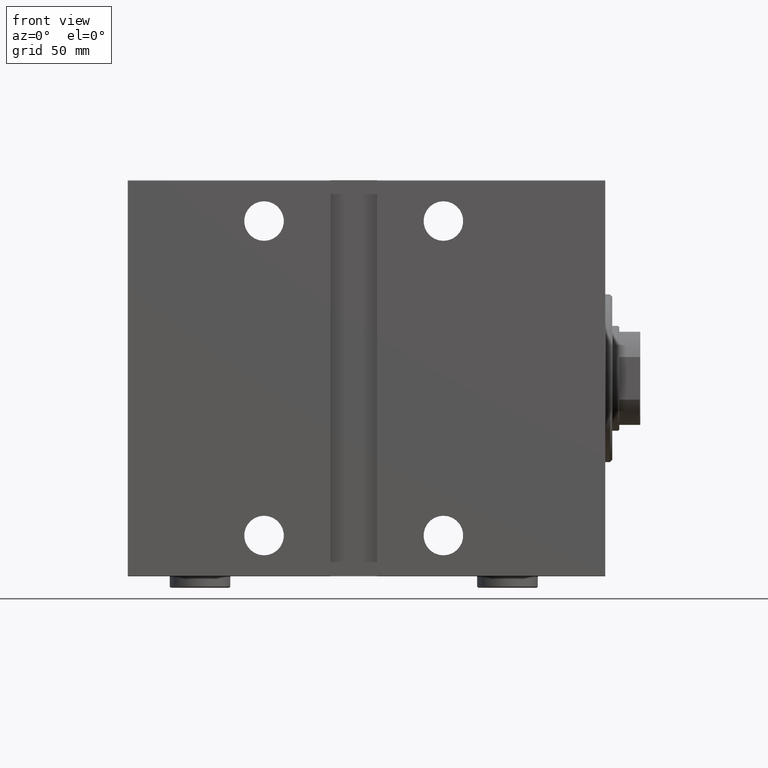
[diagram: clean part render]
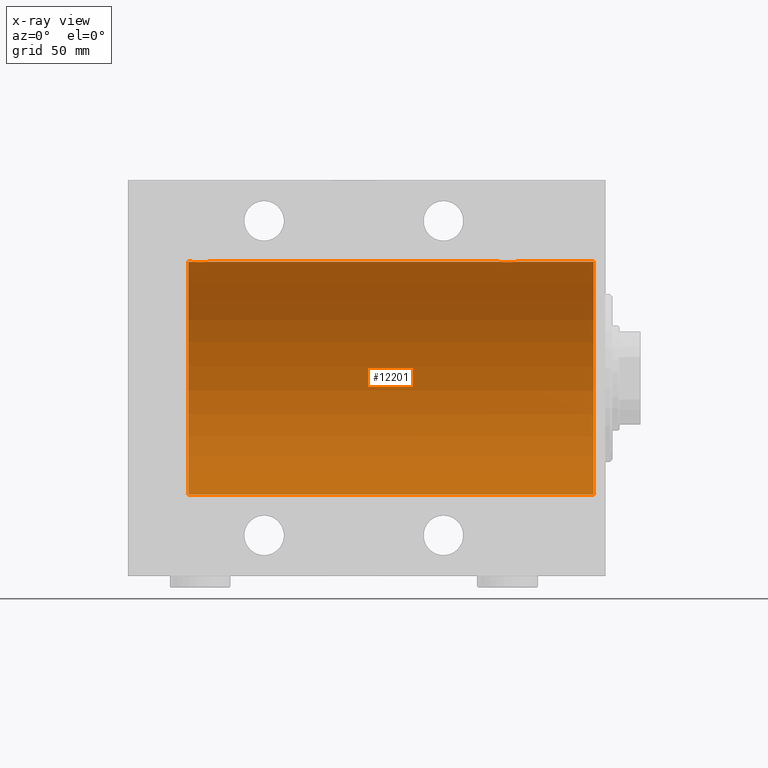
[diagram: x-ray — body ghosted, one internal face saturated and labeled with its STEP entity id]
A machine part, front view, then the same camera in x-ray: the body is ghosted and one INTERNAL B-rep face — a face not visible from any outside direction — is saturated and labeled: STEP entity #12201.
In plain terms, the highlighted cylindrical surface (partial cylindrical patch) has radius 50 mm, axis along (1, 0, -0).
Its self-contained STEP definition (entity closure, byte-faithful):
#222 = CARTESIAN_POINT ( 'NONE',  ( 174.2772492703791727, -4.250219976861650650, 49.81902879621013369 ) ) ;
#409 = DIRECTION ( 'NONE',  ( -1.000000000000000000, 0.000000000000000000, 0.000000000000000000 ) ) ;
#569 = CARTESIAN_POINT ( 'NONE',  ( 177.6860283212194815, -2.133925816755183558, 49.95498245321557818 ) ) ;
#1602 = DIRECTION ( 'NONE',  ( -1.000000000000000000, -0.000000000000000000, -0.000000000000000000 ) ) ;
#1666 = CARTESIAN_POINT ( 'NONE',  ( 179.0000000000000000, 0.000000000000000000, 50.00000000000000000 ) ) ;
#1792 = CARTESIAN_POINT ( 'NONE',  ( 179.0000000000000000, 6.123233995736764507E-15, -50.00000000000000000 ) ) ;
#1822 = CARTESIAN_POINT ( 'NONE',  ( 44.80697831839309941, -3.203153387937316854, 49.89767833571684719 ) ) ;
#2195 = DIRECTION ( 'NONE',  ( -1.000000000000000000, -0.000000000000000000, -0.000000000000000000 ) ) ;
#3081 = EDGE_CURVE ( 'NONE', #28864, #43359, #32419, .T. ) ;
#3131 = CARTESIAN_POINT ( 'NONE',  ( 171.4068727911404721, -3.378657745070624774, 49.88595615988430154 ) ) ;
#3806 = CARTESIAN_POINT ( 'NONE',  ( 175.8821704948444165, -3.820681512513388167, 49.85392475515401145 ) ) ;
#4996 = VERTEX_POINT ( 'NONE', #27254 ) ;
#5400 = CARTESIAN_POINT ( 'NONE',  ( 46.25000000000000000, 5.983909456282587589E-15, 50.00000000000000000 ) ) ;
#5619 = CARTESIAN_POINT ( 'NONE',  ( 45.68602832121950286, -2.133925816755175564, 49.95498245321557818 ) ) ;
#5839 = CARTESIAN_POINT ( 'NONE',  ( 37.77689247200999034, -0.5531336717329059516, 49.99769193709643389 ) ) ;
#6936 = CARTESIAN_POINT ( 'NONE',  ( 173.7160471297329707, -4.249777379711409786, 49.81906655360197789 ) ) ;
#6976 = ORIENTED_EDGE ( 'NONE', *, *, #32136, .T. ) ;
#7171 = CARTESIAN_POINT ( 'NONE',  ( 169.7768924720099903, -0.5531336717329072838, 49.99769193709643389 ) ) ;
#7206 = CYLINDRICAL_SURFACE ( 'NONE', #37569, 50.00000000000000000 ) ;
#7355 = EDGE_CURVE ( 'NONE', #8323, #33901, #10561, .T. ) ;
#7426 = DIRECTION ( 'NONE',  ( -1.000000000000000000, -0.000000000000000000, -0.000000000000000000 ) ) ;
#7808 = CIRCLE ( 'NONE', #24257, 50.00000000000000000 ) ;
#8323 = VERTEX_POINT ( 'NONE', #14612 ) ;
#8553 = CARTESIAN_POINT ( 'NONE',  ( 37.75000000000001421, -0.2773743941468539420, 50.00000000000000711 ) ) ;
#8769 = CARTESIAN_POINT ( 'NONE',  ( 43.09737617879036975, -4.115209769591108291, 49.83039196709102470 ) ) ;
#8989 = CARTESIAN_POINT ( 'NONE',  ( 45.37519984081967550, -2.597781786597460840, 49.93300953359122474 ) ) ;
#9120 = VECTOR ( 'NONE', #1602, 1000.000000000000000 ) ;
#9421 = CARTESIAN_POINT ( 'NONE',  ( 38.79696438048010521, -2.807099414226279066, 49.92152599098506016 ) ) ;
#9743 = VECTOR ( 'NONE', #15332, 1000.000000000000000 ) ;
#10301 = CARTESIAN_POINT ( 'NONE',  ( 171.1884693348458484, -3.199146701881689481, 49.89793607725460589 ) ) ;
#10428 = CARTESIAN_POINT ( 'NONE',  ( 178.2500000000000000, 3.264240518254796977E-15, 50.00000000000000000 ) ) ;
#10500 = CARTESIAN_POINT ( 'NONE',  ( 37.75000000000000711, -2.480809774739037926E-23, 50.00000000000000000 ) ) ;
#10546 = CARTESIAN_POINT ( 'NONE',  ( 169.7499999999999716, -2.480257572105383217E-23, 50.00000000000000000 ) ) ;
#10561 = LINE ( 'NONE', #11016, #33852 ) ;
#10755 = CARTESIAN_POINT ( 'NONE',  ( 176.1263164487507993, -3.690299572754722313, 49.86386974736159061 ) ) ;
#10864 = CARTESIAN_POINT ( 'NONE',  ( 179.0000000000000000, 0.000000000000000000, 0.000000000000000000 ) ) ;
#11016 = CARTESIAN_POINT ( 'NONE',  ( 179.0000000000000000, 0.000000000000000000, 50.00000000000000000 ) ) ;
#11913 = CARTESIAN_POINT ( 'NONE',  ( 45.81839248987871827, -1.886522330773408029, 49.96505190380065642 ) ) ;
#12132 = CARTESIAN_POINT ( 'NONE',  ( 46.22242635520780851, -0.5587117664567096131, 49.99763378604802000 ) ) ;
#12201 = ADVANCED_FACE ( 'NONE', ( #38178 ), #7206, .F. ) ;
#12778 = CARTESIAN_POINT ( 'NONE',  ( 43.36710647554576070, -4.033756670430846292, 49.83713703490974467 ) ) ;
#13378 = CARTESIAN_POINT ( 'NONE',  ( 179.0000000000000000, 0.000000000000000000, 50.00000000000000000 ) ) ;
#13445 = CARTESIAN_POINT ( 'NONE',  ( 175.0973761787903982, -4.115209769591112732, 49.83039196709102470 ) ) ;
#14077 = DIRECTION ( 'NONE',  ( 0.000000000000000000, 0.000000000000000000, 1.000000000000000000 ) ) ;
#14612 = CARTESIAN_POINT ( 'NONE',  ( 179.0000000000000000, 0.000000000000000000, 50.00000000000000000 ) ) ;
#14692 = CARTESIAN_POINT ( 'NONE',  ( 178.2500000000000284, -0.2808785465865648034, 50.00000000000001421 ) ) ;
#15332 = DIRECTION ( 'NONE',  ( -1.000000000000000000, -0.000000000000000000, -0.000000000000000000 ) ) ;
#15371 = B_SPLINE_CURVE_WITH_KNOTS ( 'NONE', 3,
 ( #36591, #8553, #5839, #30067, #39953, #26479, #29851, #40173, #9421, #16358, #42873, #22237, #19517, #15929, #33216, #36151, #33430, #16141, #26045, #8769, #12778, #35937, #23105, #19732, #1822, #39739, #8989, #5619, #11913, #29196, #22674, #12132, #22454, #5400 ),
 .UNSPECIFIED., .F., .F.,
 ( 4, 2, 2, 2, 2, 2, 2, 2, 2, 2, 2, 2, 2, 2, 2, 2, 4 ),
 ( 0.01329343152928760124, 0.01412407817529638850, 0.01495472482130517575, 0.01578537146731396126, 0.01661601811332274678, 0.01744666475933153577, 0.01827731140534032128, 0.01910795805134911027, 0.01993860469735789925, 0.02076925134336668477, 0.02159989798937547029, 0.02243054463538425927, 0.02326119128139304479, 0.02409183792740183377, 0.02492248457341061929, 0.02575313121941940481, 0.02658377786542819379 ),
 .UNSPECIFIED. ) ;
#15634 = ORIENTED_EDGE ( 'NONE', *, *, #32533, .T. ) ;
#15872 = LINE ( 'NONE', #13378, #30025 ) ;
#15929 = CARTESIAN_POINT ( 'NONE',  ( 40.62666563420964394, -4.031616700143186627, 49.83731072121798888 ) ) ;
#16141 = CARTESIAN_POINT ( 'NONE',  ( 42.27724927037917979, -4.250219976861642657, 49.81902879621012659 ) ) ;
#16358 = CARTESIAN_POINT ( 'NONE',  ( 39.18846933484580575, -3.199146701881673938, 49.89793607725460589 ) ) ;
#16590 = CARTESIAN_POINT ( 'NONE',  ( 172.6266656342096155, -4.031616700143195509, 49.83731072121799599 ) ) ;
#16725 = B_SPLINE_CURVE_WITH_KNOTS ( 'NONE', 3,
 ( #30961, #27362, #7171, #34101, #40840, #34554, #20184, #20403, #23783, #10301, #3131, #24005, #30515, #16590, #44196, #37697, #6936, #222, #20620, #13445, #27143, #3806, #10755, #24458, #41407, #38049, #24358, #569, #38269, #25029, #34676, #38723, #14692, #10428 ),
 .UNSPECIFIED., .F., .F.,
 ( 4, 2, 2, 2, 2, 2, 2, 2, 2, 2, 2, 2, 2, 2, 2, 2, 4 ),
 ( 0.01329343152928759257, 0.01412407817529637809, 0.01495472482130516534, 0.01578537146731395086, 0.01661601811332273637, 0.01744666475933152189, 0.01827731140534030740, 0.01910795805134909292, 0.01993860469735788191, 0.02076925134336666742, 0.02159989798937545294, 0.02243054463538423846, 0.02326119128139302744, 0.02409183792740181296, 0.02492248457341059847, 0.02575313121941938399, 0.02658377786542816951 ),
 .UNSPECIFIED. ) ;
#17289 = CARTESIAN_POINT ( 'NONE',  ( 179.0000000000000000, 0.000000000000000000, 0.000000000000000000 ) ) ;
#17405 = ORIENTED_EDGE ( 'NONE', *, *, #7355, .F. ) ;
#17976 = DIRECTION ( 'NONE',  ( 0.000000000000000000, 0.000000000000000000, 1.000000000000000000 ) ) ;
#18079 = VERTEX_POINT ( 'NONE', #1792 ) ;
#19517 = CARTESIAN_POINT ( 'NONE',  ( 40.11255260607201478, -3.818052230167719330, 49.85412671291930309 ) ) ;
#19732 = CARTESIAN_POINT ( 'NONE',  ( 44.58820214676201488, -3.382416624899780011, 49.88570010427956447 ) ) ;
#20184 = CARTESIAN_POINT ( 'NONE',  ( 170.3106284432061273, -2.128188802142376268, 49.95522967821975158 ) ) ;
#20403 = CARTESIAN_POINT ( 'NONE',  ( 170.6211828273626452, -2.593114840406140598, 49.93325460257641879 ) ) ;
#20620 = CARTESIAN_POINT ( 'NONE',  ( 174.5540856488014754, -4.222816005855213106, 49.82138837911247009 ) ) ;
#22237 = CARTESIAN_POINT ( 'NONE',  ( 39.86863600553846254, -3.687400765141531700, 49.86408552998297949 ) ) ;
#22454 = CARTESIAN_POINT ( 'NONE',  ( 46.25000000000004263, -0.2808785465865667463, 50.00000000000001421 ) ) ;
#22674 = CARTESIAN_POINT ( 'NONE',  ( 46.11249701080335228, -1.108337267831485340, 49.98846998601261760 ) ) ;
#23101 = ORIENTED_EDGE ( 'NONE', *, *, #23977, .T. ) ;
#23105 = CARTESIAN_POINT ( 'NONE',  ( 44.12631644875079928, -3.690299572754719204, 49.86386974736159772 ) ) ;
#23355 = VERTEX_POINT ( 'NONE', #39884 ) ;
#23783 = CARTESIAN_POINT ( 'NONE',  ( 170.7969643804800626, -2.807099414226295941, 49.92152599098506727 ) ) ;
#23977 = EDGE_CURVE ( 'NONE', #18079, #23355, #28978, .T. ) ;
#24005 = CARTESIAN_POINT ( 'NONE',  ( 171.8686360055384910, -3.687400765141532144, 49.86408552998298660 ) ) ;
#24257 = AXIS2_PLACEMENT_3D ( 'NONE', #31149, #409, #14077 ) ;
#24340 = DIRECTION ( 'NONE',  ( 0.000000000000000000, 0.000000000000000000, 1.000000000000000000 ) ) ;
#24358 = CARTESIAN_POINT ( 'NONE',  ( 177.3751998408196471, -2.597781786597468390, 49.93300953359122474 ) ) ;
#24458 = CARTESIAN_POINT ( 'NONE',  ( 176.5882021467620575, -3.382416624899780899, 49.88570010427955737 ) ) ;
#25029 = CARTESIAN_POINT ( 'NONE',  ( 178.0307979615535032, -1.375411031076039237, 49.98173289062309976 ) ) ;
#25055 = ORIENTED_EDGE ( 'NONE', *, *, #36450, .F. ) ;
#25356 = CARTESIAN_POINT ( 'NONE',  ( 5.000000000000004441, 0.000000000000000000, 50.00000000000000000 ) ) ;
#26045 = CARTESIAN_POINT ( 'NONE',  ( 42.55408564880149669, -4.222816005855208665, 49.82138837911247009 ) ) ;
#26479 = CARTESIAN_POINT ( 'NONE',  ( 38.17899418014773261, -1.881229021238125521, 49.96525240872481533 ) ) ;
#27143 = CARTESIAN_POINT ( 'NONE',  ( 175.3671064755457678, -4.033756670430855173, 49.83713703490974467 ) ) ;
#27254 = CARTESIAN_POINT ( 'NONE',  ( 46.25000000000000000, 5.983909456282587589E-15, 50.00000000000000000 ) ) ;
#27362 = CARTESIAN_POINT ( 'NONE',  ( 169.7499999999999432, -0.2773743941468554408, 50.00000000000000711 ) ) ;
#27396 = DIRECTION ( 'NONE',  ( -1.000000000000000000, -0.000000000000000000, -0.000000000000000000 ) ) ;
#28461 = ORIENTED_EDGE ( 'NONE', *, *, #3081, .F. ) ;
#28864 = VERTEX_POINT ( 'NONE', #10500 ) ;
#28978 = LINE ( 'NONE', #35708, #9120 ) ;
#29196 = CARTESIAN_POINT ( 'NONE',  ( 46.03079796155342507, -1.375411031076031687, 49.98173289062309976 ) ) ;
#29851 = CARTESIAN_POINT ( 'NONE',  ( 38.31062844320613436, -2.128188802142365166, 49.95522967821974447 ) ) ;
#30025 = VECTOR ( 'NONE', #2195, 1000.000000000000000 ) ;
#30067 = CARTESIAN_POINT ( 'NONE',  ( 37.88568086693991432, -1.101350136471744623, 49.98862054280447609 ) ) ;
#30515 = CARTESIAN_POINT ( 'NONE',  ( 172.1125526060720006, -3.818052230167728656, 49.85412671291929598 ) ) ;
#30961 = CARTESIAN_POINT ( 'NONE',  ( 169.7499999999999716, -2.480257572105383217E-23, 50.00000000000000000 ) ) ;
#31149 = CARTESIAN_POINT ( 'NONE',  ( 5.000000000000004441, 0.000000000000000000, 0.000000000000000000 ) ) ;
#32136 = EDGE_CURVE ( 'NONE', #34804, #33901, #16725, .T. ) ;
#32419 = LINE ( 'NONE', #1666, #9743 ) ;
#32533 = EDGE_CURVE ( 'NONE', #23355, #43359, #7808, .T. ) ;
#33216 = CARTESIAN_POINT ( 'NONE',  ( 40.89676703965783844, -4.113647494206482236, 49.83052139214890985 ) ) ;
#33430 = CARTESIAN_POINT ( 'NONE',  ( 41.71604712973303464, -4.249777379711404457, 49.81906655360197078 ) ) ;
#33852 = VECTOR ( 'NONE', #27396, 1000.000000000000000 ) ;
#33901 = VERTEX_POINT ( 'NONE', #40267 ) ;
#34101 = CARTESIAN_POINT ( 'NONE',  ( 169.8856808669398788, -1.101350136471746399, 49.98862054280448319 ) ) ;
#34339 = AXIS2_PLACEMENT_3D ( 'NONE', #10864, #35339, #24340 ) ;
#34426 = EDGE_LOOP ( 'NONE', ( #36519, #23101, #15634, #28461, #43443, #25055, #6976, #17405 ) ) ;
#34554 = CARTESIAN_POINT ( 'NONE',  ( 170.1789941801477823, -1.881229021238139731, 49.96525240872482954 ) ) ;
#34676 = CARTESIAN_POINT ( 'NONE',  ( 178.1124970108033381, -1.108337267831492889, 49.98846998601261760 ) ) ;
#34804 = VERTEX_POINT ( 'NONE', #10546 ) ;
#35339 = DIRECTION ( 'NONE',  ( -1.000000000000000000, 0.000000000000000000, 0.000000000000000000 ) ) ;
#35708 = CARTESIAN_POINT ( 'NONE',  ( 179.0000000000000000, 6.123233995736764507E-15, -50.00000000000000000 ) ) ;
#35937 = CARTESIAN_POINT ( 'NONE',  ( 43.88217049484444487, -3.820681512513376177, 49.85392475515401145 ) ) ;
#36151 = CARTESIAN_POINT ( 'NONE',  ( 41.44002132304353125, -4.222042462213122960, 49.82145436824652762 ) ) ;
#36450 = EDGE_CURVE ( 'NONE', #34804, #4996, #15872, .T. ) ;
#36519 = ORIENTED_EDGE ( 'NONE', *, *, #42307, .F. ) ;
#36591 = CARTESIAN_POINT ( 'NONE',  ( 37.75000000000000711, -2.480809774739037926E-23, 50.00000000000000000 ) ) ;
#37358 = EDGE_CURVE ( 'NONE', #28864, #4996, #15371, .T. ) ;
#37569 = AXIS2_PLACEMENT_3D ( 'NONE', #17289, #7426, #17976 ) ;
#37697 = CARTESIAN_POINT ( 'NONE',  ( 173.4400213230435668, -4.222042462213131842, 49.82145436824653473 ) ) ;
#38049 = CARTESIAN_POINT ( 'NONE',  ( 177.1992192796128052, -2.811461347331109639, 49.92127983148852621 ) ) ;
#38178 = FACE_OUTER_BOUND ( 'NONE', #34426, .T. ) ;
#38269 = CARTESIAN_POINT ( 'NONE',  ( 177.8183924898787041, -1.886522330773414913, 49.96505190380066352 ) ) ;
#38723 = CARTESIAN_POINT ( 'NONE',  ( 178.2224263552078298, -0.5587117664567154973, 49.99763378604802000 ) ) ;
#39739 = CARTESIAN_POINT ( 'NONE',  ( 45.19921927961282648, -2.811461347331102534, 49.92127983148852621 ) ) ;
#39884 = CARTESIAN_POINT ( 'NONE',  ( 5.000000000000004441, 6.123233995736764507E-15, -50.00000000000000000 ) ) ;
#39953 = CARTESIAN_POINT ( 'NONE',  ( 37.96727357902688027, -1.369753890039652644, 49.98188917176551627 ) ) ;
#40173 = CARTESIAN_POINT ( 'NONE',  ( 38.62118282736263097, -2.593114840406128163, 49.93325460257639747 ) ) ;
#40267 = CARTESIAN_POINT ( 'NONE',  ( 178.2500000000000000, 3.264240518254796977E-15, 50.00000000000000000 ) ) ;
#40840 = CARTESIAN_POINT ( 'NONE',  ( 169.9672735790268803, -1.369753890039667299, 49.98188917176553048 ) ) ;
#41407 = CARTESIAN_POINT ( 'NONE',  ( 176.8069783183931065, -3.203153387937324403, 49.89767833571684008 ) ) ;
#42307 = EDGE_CURVE ( 'NONE', #18079, #8323, #44367, .T. ) ;
#42873 = CARTESIAN_POINT ( 'NONE',  ( 39.40687279114044372, -3.378657745070624774, 49.88595615988428733 ) ) ;
#43359 = VERTEX_POINT ( 'NONE', #25356 ) ;
#43443 = ORIENTED_EDGE ( 'NONE', *, *, #37358, .T. ) ;
#44196 = CARTESIAN_POINT ( 'NONE',  ( 172.8967670396578740, -4.113647494206492006, 49.83052139214891696 ) ) ;
#44367 = CIRCLE ( 'NONE', #34339, 50.00000000000000000 ) ;